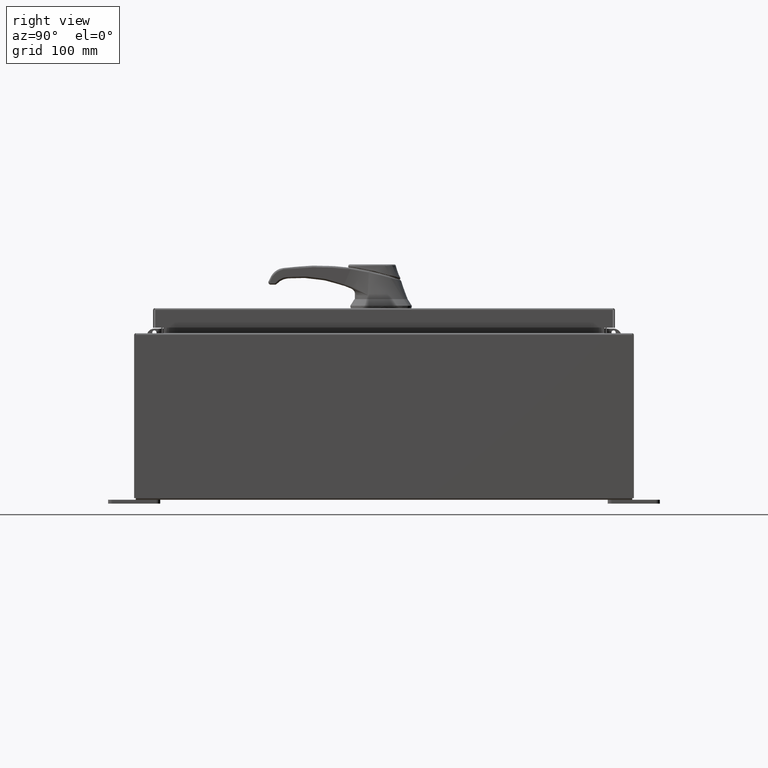
[diagram: clean part render]
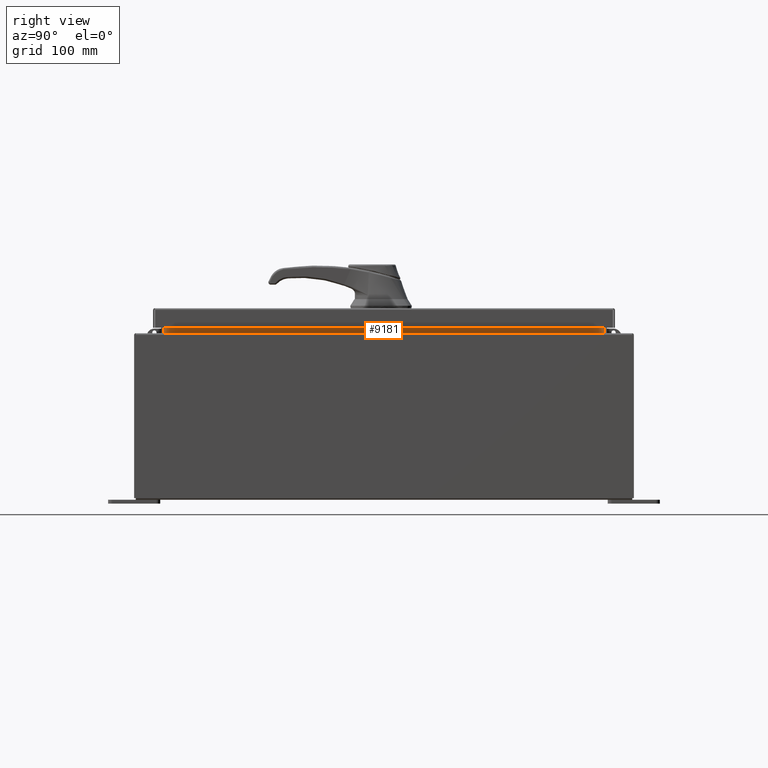
[diagram: same view with one face highlighted and labeled with its STEP entity id]
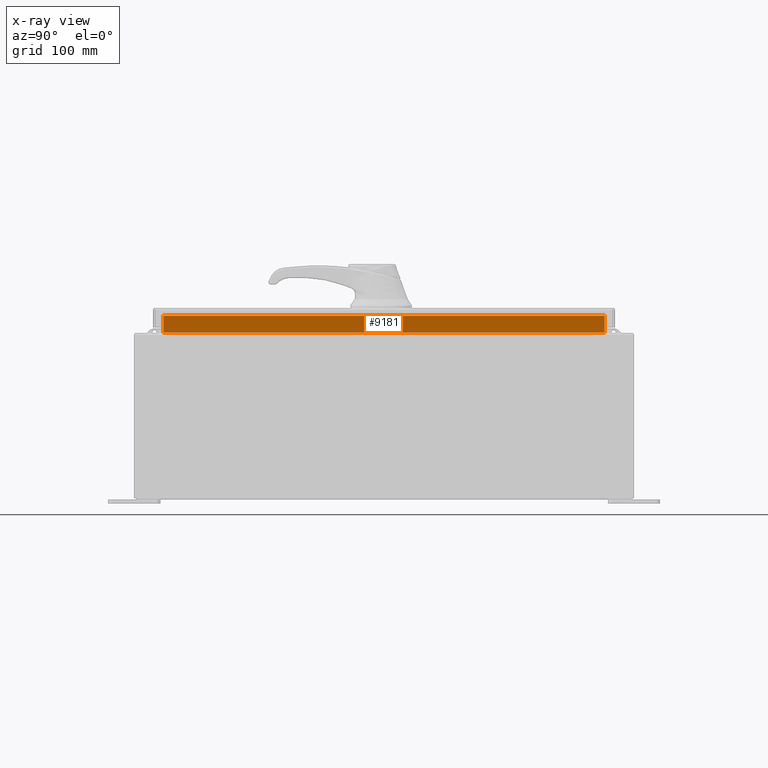
[diagram: x-ray of the same camera — body ghosted, the highlighted face saturated]
A machine part, right view. The second image highlights one B-rep face of the part: STEP entity #9181.
The next image is the same camera in x-ray: the body ghosted, the highlighted face saturated — about 0% of this face is hidden behind the body in this view.
In plain terms, the highlighted planar face has unit normal (1, 0, -0).
Its self-contained STEP definition (entity closure, byte-faithful):
#5130 = VERTEX_POINT ( 'NONE', #84538 ) ;
#9181 = ADVANCED_FACE ( 'NONE', ( #18380 ), #72231, .T. ) ;
#11008 = VECTOR ( 'NONE', #83865, 39.37007874015748100 ) ;
#11706 = ORIENTED_EDGE ( 'NONE', *, *, #110557, .F. ) ;
#12855 = LINE ( 'NONE', #98704, #53928 ) ;
#12925 = AXIS2_PLACEMENT_3D ( 'NONE', #16383, #96199, #48480 ) ;
#14090 = CARTESIAN_POINT ( 'NONE',  ( 8.699700000000033700, -10.59375000000000000, 8.762900000000007200 ) ) ;
#16383 = CARTESIAN_POINT ( 'NONE',  ( 8.699700000000010600, 0.0000000000000000000, -2.054793730939675100E-014 ) ) ;
#18380 = FACE_OUTER_BOUND ( 'NONE', #38545, .T. ) ;
#22682 = CARTESIAN_POINT ( 'NONE',  ( 8.699700000000028400, 10.59374999999999600, 7.938300000000007900 ) ) ;
#26720 = EDGE_CURVE ( 'NONE', #5130, #57542, #12855, .T. ) ;
#34459 = LINE ( 'NONE', #57581, #11008 ) ;
#36267 = VERTEX_POINT ( 'NONE', #90316 ) ;
#38023 = VERTEX_POINT ( 'NONE', #93336 ) ;
#38545 = EDGE_LOOP ( 'NONE', ( #56565, #109828, #44766, #11706 ) ) ;
#43112 = CARTESIAN_POINT ( 'NONE',  ( 8.699700000000028400, 10.59374999999999600, 7.938300000000009700 ) ) ;
#44766 = ORIENTED_EDGE ( 'NONE', *, *, #69504, .F. ) ;
#45535 = VECTOR ( 'NONE', #92179, 39.37007874015748100 ) ;
#45940 = LINE ( 'NONE', #14090, #110189 ) ;
#48480 = DIRECTION ( 'NONE',  ( -2.361913319930196000E-015, 0.0000000000000000000, -1.000000000000000000 ) ) ;
#53928 = VECTOR ( 'NONE', #107546, 39.37007874015748100 ) ;
#56565 = ORIENTED_EDGE ( 'NONE', *, *, #26720, .F. ) ;
#57542 = VERTEX_POINT ( 'NONE', #43112 ) ;
#57581 = CARTESIAN_POINT ( 'NONE',  ( 8.699700000000030200, -10.59375000000000000, 8.850600000000007100 ) ) ;
#69504 = EDGE_CURVE ( 'NONE', #38023, #36267, #34459, .T. ) ;
#72231 = PLANE ( 'NONE',  #12925 ) ;
#80800 = EDGE_CURVE ( 'NONE', #36267, #5130, #45940, .T. ) ;
#83865 = DIRECTION ( 'NONE',  ( 2.361913319930198800E-015, -0.0000000000000000000, 1.000000000000000000 ) ) ;
#84538 = CARTESIAN_POINT ( 'NONE',  ( 8.699700000000033700, 10.59374999999999600, 8.762900000000007200 ) ) ;
#89132 = LINE ( 'NONE', #22682, #45535 ) ;
#90316 = CARTESIAN_POINT ( 'NONE',  ( 8.699700000000030200, -10.59375000000000000, 8.762900000000007200 ) ) ;
#92179 = DIRECTION ( 'NONE',  ( 5.157471138481205900E-017, -1.000000000000000000, 1.547241341544361900E-016 ) ) ;
#93336 = CARTESIAN_POINT ( 'NONE',  ( 8.699700000000028400, -10.59374999999999800, 7.938300000000009700 ) ) ;
#96199 = DIRECTION ( 'NONE',  ( 1.000000000000000000, 0.0000000000000000000, -2.361913319930196000E-015 ) ) ;
#98704 = CARTESIAN_POINT ( 'NONE',  ( 8.699700000000028400, 10.59374999999999600, 7.925300000000007100 ) ) ;
#100899 = DIRECTION ( 'NONE',  ( 0.0000000000000000000, 1.000000000000000000, 0.0000000000000000000 ) ) ;
#107546 = DIRECTION ( 'NONE',  ( -2.361913319930196000E-015, -0.0000000000000000000, -1.000000000000000000 ) ) ;
#109828 = ORIENTED_EDGE ( 'NONE', *, *, #80800, .F. ) ;
#110189 = VECTOR ( 'NONE', #100899, 39.37007874015748100 ) ;
#110557 = EDGE_CURVE ( 'NONE', #57542, #38023, #89132, .T. ) ;